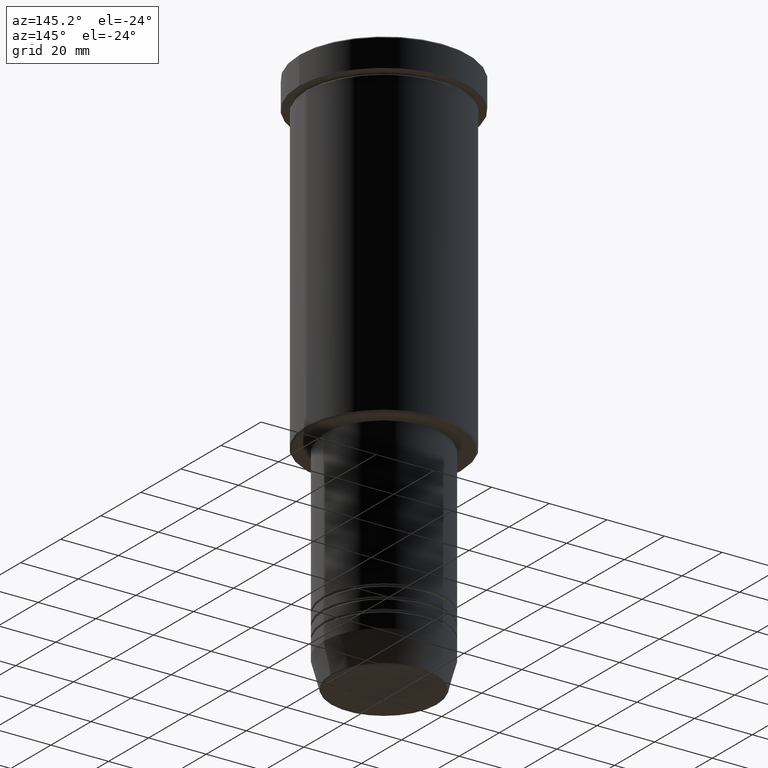
[diagram: clean part render]
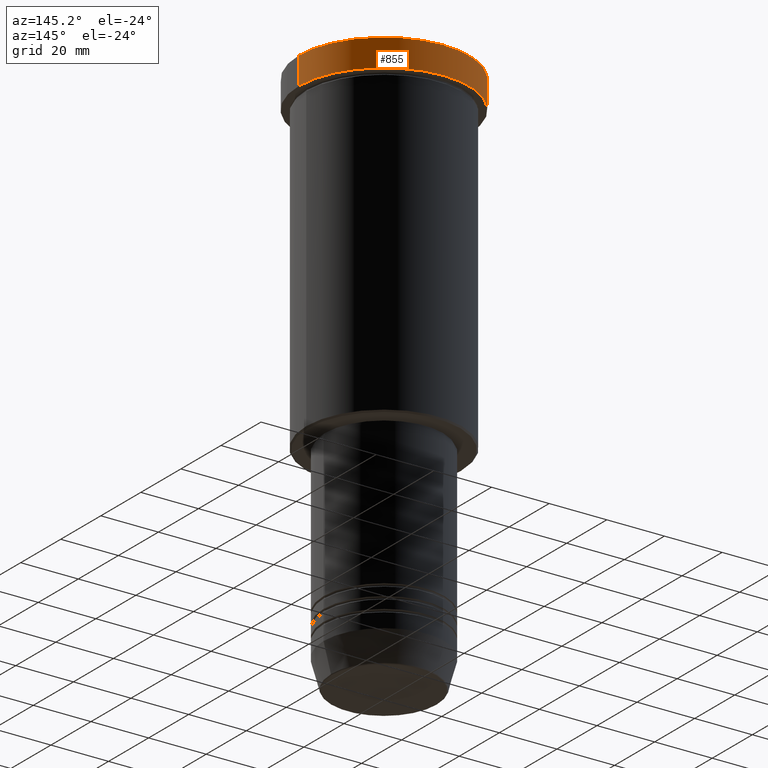
[diagram: same view with one face highlighted and labeled with its STEP entity id]
A machine part, auxiliary view. The second image highlights one B-rep face of the part: STEP entity #855.
In plain terms, the highlighted cylindrical surface (partial cylindrical patch) has radius 29.5 mm, axis along (-0, -0, 1).
Its self-contained STEP definition (entity closure, byte-faithful):
#16 = CARTESIAN_POINT ( 'NONE',  ( 0.000000000000000000, 0.000000000000000000, -9.999999999999992895 ) ) ;
#44 = ORIENTED_EDGE ( 'NONE', *, *, #536, .F. ) ;
#90 = DIRECTION ( 'NONE',  ( 1.000000000000000000, 0.000000000000000000, 0.000000000000000000 ) ) ;
#108 = EDGE_CURVE ( 'NONE', #1091, #222, #202, .T. ) ;
#118 = CARTESIAN_POINT ( 'NONE',  ( -29.50000000000000000, 3.612708057484691604E-15, -0.4999999999999726885 ) ) ;
#152 = CARTESIAN_POINT ( 'NONE',  ( 29.50000000000000000, 0.000000000000000000, 0.000000000000000000 ) ) ;
#156 = LINE ( 'NONE', #348, #976 ) ;
#166 = AXIS2_PLACEMENT_3D ( 'NONE', #469, #292, #828 ) ;
#202 = CIRCLE ( 'NONE', #166, 29.50000000000000000 ) ;
#222 = VERTEX_POINT ( 'NONE', #607 ) ;
#224 = DIRECTION ( 'NONE',  ( -0.000000000000000000, -0.000000000000000000, 1.000000000000000000 ) ) ;
#292 = DIRECTION ( 'NONE',  ( 0.000000000000000000, 0.000000000000000000, -1.000000000000000000 ) ) ;
#306 = CARTESIAN_POINT ( 'NONE',  ( 29.50000000000000000, 0.000000000000000000, -9.999999999999992895 ) ) ;
#315 = CIRCLE ( 'NONE', #735, 29.50000000000000000 ) ;
#348 = CARTESIAN_POINT ( 'NONE',  ( -29.50000000000000000, 3.612708057484691604E-15, 0.000000000000000000 ) ) ;
#420 = VERTEX_POINT ( 'NONE', #910 ) ;
#469 = CARTESIAN_POINT ( 'NONE',  ( 0.000000000000000000, 0.000000000000000000, -0.4999999999999726885 ) ) ;
#485 = EDGE_CURVE ( 'NONE', #776, #420, #315, .T. ) ;
#536 = EDGE_CURVE ( 'NONE', #776, #222, #715, .T. ) ;
#605 = ORIENTED_EDGE ( 'NONE', *, *, #982, .T. ) ;
#607 = CARTESIAN_POINT ( 'NONE',  ( 29.50000000000000000, 0.000000000000000000, -0.4999999999999726885 ) ) ;
#609 = ORIENTED_EDGE ( 'NONE', *, *, #485, .T. ) ;
#611 = ORIENTED_EDGE ( 'NONE', *, *, #108, .T. ) ;
#672 = CYLINDRICAL_SURFACE ( 'NONE', #863, 29.50000000000000000 ) ;
#715 = LINE ( 'NONE', #152, #924 ) ;
#735 = AXIS2_PLACEMENT_3D ( 'NONE', #16, #933, #90 ) ;
#774 = CARTESIAN_POINT ( 'NONE',  ( 0.000000000000000000, 0.000000000000000000, 0.000000000000000000 ) ) ;
#776 = VERTEX_POINT ( 'NONE', #306 ) ;
#791 = DIRECTION ( 'NONE',  ( -0.000000000000000000, -0.000000000000000000, 1.000000000000000000 ) ) ;
#797 = DIRECTION ( 'NONE',  ( -0.000000000000000000, -0.000000000000000000, 1.000000000000000000 ) ) ;
#828 = DIRECTION ( 'NONE',  ( 1.000000000000000000, 0.000000000000000000, 0.000000000000000000 ) ) ;
#855 = ADVANCED_FACE ( 'NONE', ( #1117 ), #672, .T. ) ;
#863 = AXIS2_PLACEMENT_3D ( 'NONE', #774, #224, #873 ) ;
#873 = DIRECTION ( 'NONE',  ( 1.000000000000000000, 0.000000000000000000, 0.000000000000000000 ) ) ;
#910 = CARTESIAN_POINT ( 'NONE',  ( -29.50000000000000000, 3.612708057484691604E-15, -9.999999999999992895 ) ) ;
#924 = VECTOR ( 'NONE', #791, 1000.000000000000000 ) ;
#933 = DIRECTION ( 'NONE',  ( -0.000000000000000000, -0.000000000000000000, 1.000000000000000000 ) ) ;
#976 = VECTOR ( 'NONE', #797, 1000.000000000000000 ) ;
#982 = EDGE_CURVE ( 'NONE', #420, #1091, #156, .T. ) ;
#1048 = EDGE_LOOP ( 'NONE', ( #609, #605, #611, #44 ) ) ;
#1091 = VERTEX_POINT ( 'NONE', #118 ) ;
#1117 = FACE_OUTER_BOUND ( 'NONE', #1048, .T. ) ;